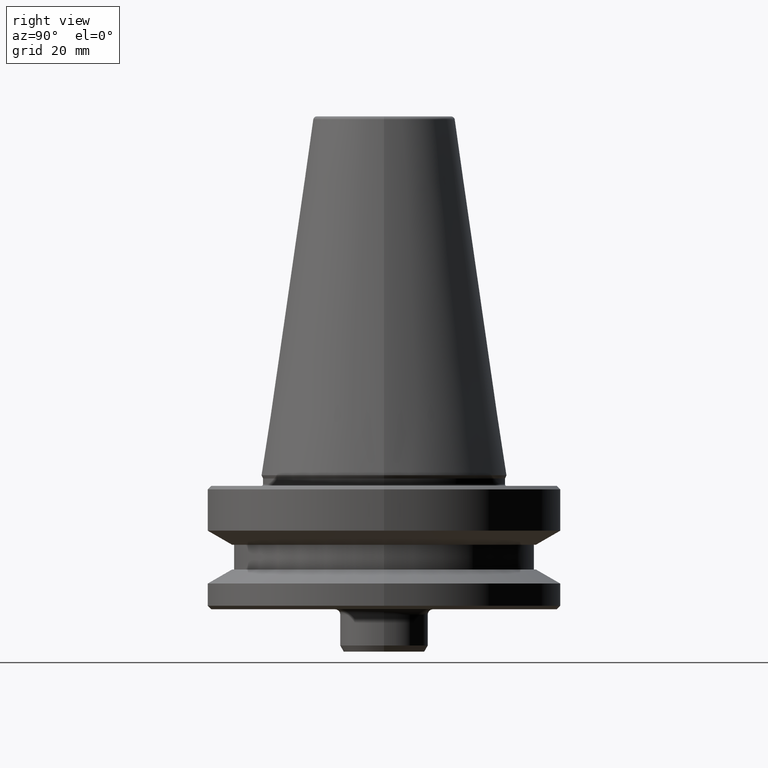
[diagram: clean part render]
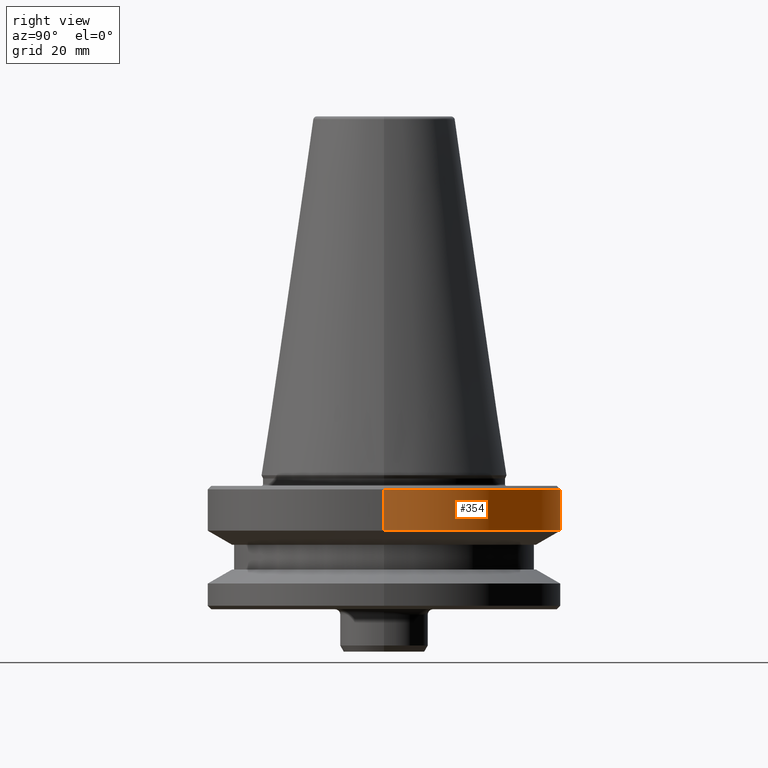
[diagram: same view with one face highlighted and labeled with its STEP entity id]
A machine part, right view. The second image highlights one B-rep face of the part: STEP entity #354.
In plain terms, the highlighted cylindrical surface (partial cylindrical patch) has radius 50 mm, axis along (-0, -0, 1).
Its self-contained STEP definition (entity closure, byte-faithful):
#6 = EDGE_CURVE ( 'NONE', #360, #572, #415, .T. ) ;
#18 = VERTEX_POINT ( 'NONE', #202 ) ;
#49 = DIRECTION ( 'NONE',  ( -0.0000000000000000000, -0.0000000000000000000, 1.000000000000000000 ) ) ;
#62 = CARTESIAN_POINT ( 'NONE',  ( -50.00000000000027000, 6.123233995736798400E-015, -4.000000000001335800 ) ) ;
#84 = EDGE_CURVE ( 'NONE', #18, #572, #650, .T. ) ;
#121 = ORIENTED_EDGE ( 'NONE', *, *, #944, .T. ) ;
#139 = AXIS2_PLACEMENT_3D ( 'NONE', #302, #843, #380 ) ;
#145 = DIRECTION ( 'NONE',  ( -0.0000000000000000000, -0.0000000000000000000, 1.000000000000000000 ) ) ;
#146 = CIRCLE ( 'NONE', #139, 50.00000000000027000 ) ;
#156 = VECTOR ( 'NONE', #145, 1000.000000000000000 ) ;
#181 = ORIENTED_EDGE ( 'NONE', *, *, #6, .F. ) ;
#193 = CARTESIAN_POINT ( 'NONE',  ( 50.00000000000027000, 0.0000000000000000000, -4.000000000001335800 ) ) ;
#202 = CARTESIAN_POINT ( 'NONE',  ( -50.00000000000027000, 6.123233995736798400E-015, -15.70022000322768300 ) ) ;
#217 = FACE_OUTER_BOUND ( 'NONE', #455, .T. ) ;
#302 = CARTESIAN_POINT ( 'NONE',  ( 0.0000000000000000000, 0.0000000000000000000, -15.70022000322768300 ) ) ;
#354 = ADVANCED_FACE ( 'NONE', ( #217 ), #777, .T. ) ;
#360 = VERTEX_POINT ( 'NONE', #193 ) ;
#380 = DIRECTION ( 'NONE',  ( 1.000000000000000000, 0.0000000000000000000, 0.0000000000000000000 ) ) ;
#381 = ORIENTED_EDGE ( 'NONE', *, *, #949, .F. ) ;
#415 = CIRCLE ( 'NONE', #503, 50.00000000000027000 ) ;
#455 = EDGE_LOOP ( 'NONE', ( #121, #633, #181, #381 ) ) ;
#460 = DIRECTION ( 'NONE',  ( -0.0000000000000000000, -0.0000000000000000000, 1.000000000000000000 ) ) ;
#503 = AXIS2_PLACEMENT_3D ( 'NONE', #520, #49, #600 ) ;
#512 = DIRECTION ( 'NONE',  ( 1.000000000000000000, 0.0000000000000000000, 0.0000000000000000000 ) ) ;
#520 = CARTESIAN_POINT ( 'NONE',  ( 0.0000000000000000000, 0.0000000000000000000, -4.000000000001335800 ) ) ;
#525 = CARTESIAN_POINT ( 'NONE',  ( 50.00000000000027000, 0.0000000000000000000, -15.70022000322768300 ) ) ;
#543 = CARTESIAN_POINT ( 'NONE',  ( -50.00000000000027000, 6.123233995736798400E-015, 108.3108805077434200 ) ) ;
#545 = CARTESIAN_POINT ( 'NONE',  ( 50.00000000000027000, 0.0000000000000000000, 108.3108805077434200 ) ) ;
#572 = VERTEX_POINT ( 'NONE', #62 ) ;
#600 = DIRECTION ( 'NONE',  ( 1.000000000000000000, 0.0000000000000000000, 0.0000000000000000000 ) ) ;
#618 = LINE ( 'NONE', #545, #877 ) ;
#633 = ORIENTED_EDGE ( 'NONE', *, *, #84, .T. ) ;
#650 = LINE ( 'NONE', #543, #156 ) ;
#654 = VERTEX_POINT ( 'NONE', #525 ) ;
#731 = DIRECTION ( 'NONE',  ( -0.0000000000000000000, -0.0000000000000000000, 1.000000000000000000 ) ) ;
#757 = AXIS2_PLACEMENT_3D ( 'NONE', #967, #731, #512 ) ;
#777 = CYLINDRICAL_SURFACE ( 'NONE', #757, 50.00000000000027000 ) ;
#843 = DIRECTION ( 'NONE',  ( -0.0000000000000000000, -0.0000000000000000000, 1.000000000000000000 ) ) ;
#877 = VECTOR ( 'NONE', #460, 1000.000000000000000 ) ;
#944 = EDGE_CURVE ( 'NONE', #654, #18, #146, .T. ) ;
#949 = EDGE_CURVE ( 'NONE', #654, #360, #618, .T. ) ;
#967 = CARTESIAN_POINT ( 'NONE',  ( 0.0000000000000000000, 0.0000000000000000000, 108.3108805077434200 ) ) ;